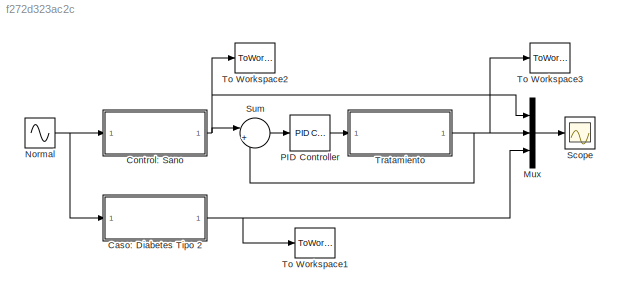
MODEL slx_f272d323ac2c
KIND model
CONFIG AbsTol = auto
CONFIG EnableMultiTasking = off
CONFIG FixedStep = auto
CONFIG MaxStep = 1e-3
CONFIG MinStep = auto
CONFIG RelTol = 1e-3
CONFIG SampleTimeConstraint = Unconstrained
CONFIG SolverName = ode15s
CONFIG StartTime = 0.0
CONFIG StopTime = 10.0
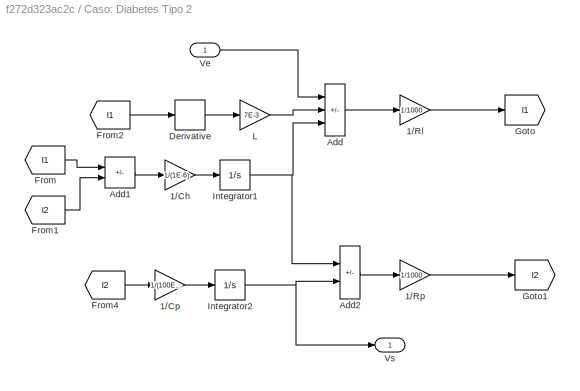
BLOCK [SubSystem] Caso: Diabetes Tipo 2
BLOCK [Gain] Caso: Diabetes Tipo 2/1//Ch
  Gain = 1/(1E-6)
BLOCK [Gain] Caso: Diabetes Tipo 2/1//Cp
  Gain = 1/(100E-6)
BLOCK [Gain] Caso: Diabetes Tipo 2/1//Rl
  Gain = 1/1000
BLOCK [Gain] Caso: Diabetes Tipo 2/1//Rp
  Gain = 1/1000
BLOCK [Sum] Caso: Diabetes Tipo 2/Add
  IconShape = rectangular
  Inputs = +--
BLOCK [Sum] Caso: Diabetes Tipo 2/Add1
  IconShape = rectangular
  Inputs = +-
BLOCK [Sum] Caso: Diabetes Tipo 2/Add2
  IconShape = rectangular
  Inputs = +-
BLOCK [Derivative] Caso: Diabetes Tipo 2/Derivative
BLOCK [From] Caso: Diabetes Tipo 2/From
  GotoTag = I1
BLOCK [From] Caso: Diabetes Tipo 2/From1
  GotoTag = I2
BLOCK [From] Caso: Diabetes Tipo 2/From2
  GotoTag = I1
BLOCK [From] Caso: Diabetes Tipo 2/From4
  GotoTag = I2
BLOCK [Goto] Caso: Diabetes Tipo 2/Goto
  GotoTag = I1
BLOCK [Goto] Caso: Diabetes Tipo 2/Goto1
  GotoTag = I2
BLOCK [Integrator] Caso: Diabetes Tipo 2/Integrator1
BLOCK [Integrator] Caso: Diabetes Tipo 2/Integrator2
BLOCK [Gain] Caso: Diabetes Tipo 2/L
  Gain = 7E-3
BLOCK [Inport] Caso: Diabetes Tipo 2/Ve
BLOCK [Outport] Caso: Diabetes Tipo 2/Vs
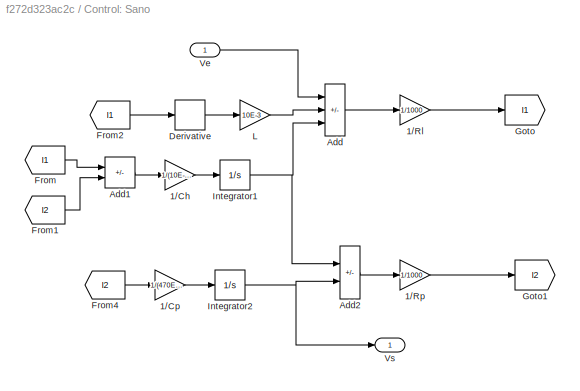
BLOCK [SubSystem] Control: Sano
BLOCK [Gain] Control: Sano/1//Ch
  Gain = 1/(10E-6)
BLOCK [Gain] Control: Sano/1//Cp
  Gain = 1/(470E-6)
BLOCK [Gain] Control: Sano/1//Rl
  Gain = 1/1000
BLOCK [Gain] Control: Sano/1//Rp
  Gain = 1/1000
BLOCK [Sum] Control: Sano/Add
  IconShape = rectangular
  Inputs = +--
BLOCK [Sum] Control: Sano/Add1
  IconShape = rectangular
  Inputs = +-
BLOCK [Sum] Control: Sano/Add2
  IconShape = rectangular
  Inputs = +-
BLOCK [Derivative] Control: Sano/Derivative
BLOCK [From] Control: Sano/From
  GotoTag = I1
BLOCK [From] Control: Sano/From1
  GotoTag = I2
BLOCK [From] Control: Sano/From2
  GotoTag = I1
BLOCK [From] Control: Sano/From4
  GotoTag = I2
BLOCK [Goto] Control: Sano/Goto
  GotoTag = I1
BLOCK [Goto] Control: Sano/Goto1
  GotoTag = I2
BLOCK [Integrator] Control: Sano/Integrator1
BLOCK [Integrator] Control: Sano/Integrator2
BLOCK [Gain] Control: Sano/L
  Gain = 10E-3
BLOCK [Inport] Control: Sano/Ve
BLOCK [Outport] Control: Sano/Vs
BLOCK [Mux] Mux
  DisplayOption = bar
  Inputs = 3
BLOCK [Sin] Normal
  Amplitude = 2
  Frequency = 1.5708
  SampleTime = 0.001
BLOCK [Reference] PID Controller  REF=slpidlib/PID Controller
  LibrarySourceBlock = simulink/Continuous/PID Controller
  SourceBlock = slpidlib/PID Controller
  SourceType = PID 1dof
BLOCK [Scope] Scope
  Floating = off
  NumInputPorts = 1
  ScopeSpecificationString = Simulink.scopes.TimeScopeBlockCfg('CurrentConfiguration', extmgr.ConfigurationSet(extmgr.Configuration('Core','General UI',true),extmgr.Configuration('Core','Source UI',true),extmgr.Configuration('Sources','WiredSimulink',true),extmgr.Configuration('Visuals','Time Domain',true,'SerializedDisplays',{struct('MinYLimReal','-2.38454','MaxYLimReal','2.38604','YLabelReal','','MinYLimMag','0.00000','MaxY...<+1437ch>
BLOCK [Sum] Sum
  Inputs = |+-
BLOCK [ToWorkspace] To Workspace1
  FixptAsFi = on
  MaxDataPoints = inf
  SampleTime = -1
  VariableName = Ppx
BLOCK [ToWorkspace] To Workspace2
  FixptAsFi = on
  MaxDataPoints = inf
  SampleTime = -1
  VariableName = Ppy
BLOCK [ToWorkspace] To Workspace3
  FixptAsFi = on
  MaxDataPoints = inf
  SampleTime = -1
  VariableName = Ppz
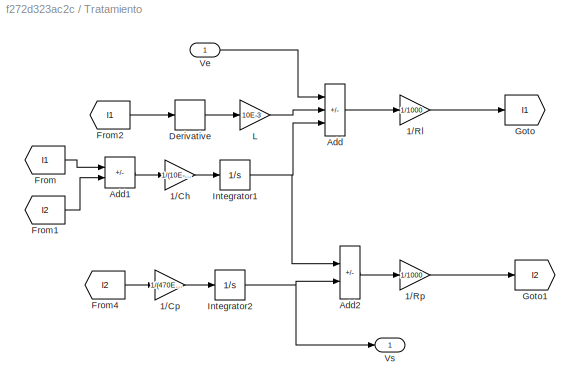
BLOCK [SubSystem] Tratamiento
BLOCK [Gain] Tratamiento/1//Ch
  Gain = 1/(10E-6)
BLOCK [Gain] Tratamiento/1//Cp
  Gain = 1/(470E-6)
BLOCK [Gain] Tratamiento/1//Rl
  Gain = 1/1000
BLOCK [Gain] Tratamiento/1//Rp
  Gain = 1/1000
BLOCK [Sum] Tratamiento/Add
  IconShape = rectangular
  Inputs = +--
BLOCK [Sum] Tratamiento/Add1
  IconShape = rectangular
  Inputs = +-
BLOCK [Sum] Tratamiento/Add2
  IconShape = rectangular
  Inputs = +-
BLOCK [Derivative] Tratamiento/Derivative
BLOCK [From] Tratamiento/From
  GotoTag = I1
BLOCK [From] Tratamiento/From1
  GotoTag = I2
BLOCK [From] Tratamiento/From2
  GotoTag = I1
BLOCK [From] Tratamiento/From4
  GotoTag = I2
BLOCK [Goto] Tratamiento/Goto
  GotoTag = I1
BLOCK [Goto] Tratamiento/Goto1
  GotoTag = I2
BLOCK [Integrator] Tratamiento/Integrator1
BLOCK [Integrator] Tratamiento/Integrator2
BLOCK [Gain] Tratamiento/L
  Gain = 10E-3
BLOCK [Inport] Tratamiento/Ve
BLOCK [Outport] Tratamiento/Vs
LINE Caso: Diabetes Tipo 2/1//Ch:1 -> Caso: Diabetes Tipo 2/Integrator1:1
LINE Caso: Diabetes Tipo 2/1//Cp:1 -> Caso: Diabetes Tipo 2/Integrator2:1
LINE Caso: Diabetes Tipo 2/1//Rl:1 -> Caso: Diabetes Tipo 2/Goto:1
LINE Caso: Diabetes Tipo 2/1//Rp:1 -> Caso: Diabetes Tipo 2/Goto1:1
LINE Caso: Diabetes Tipo 2/Add1:1 -> Caso: Diabetes Tipo 2/1//Ch:1
LINE Caso: Diabetes Tipo 2/Add2:1 -> Caso: Diabetes Tipo 2/1//Rp:1
LINE Caso: Diabetes Tipo 2/Add:1 -> Caso: Diabetes Tipo 2/1//Rl:1
LINE Caso: Diabetes Tipo 2/Derivative:1 -> Caso: Diabetes Tipo 2/L:1
LINE Caso: Diabetes Tipo 2/From1:1 -> Caso: Diabetes Tipo 2/Add1:2
LINE Caso: Diabetes Tipo 2/From2:1 -> Caso: Diabetes Tipo 2/Derivative:1
LINE Caso: Diabetes Tipo 2/From4:1 -> Caso: Diabetes Tipo 2/1//Cp:1
LINE Caso: Diabetes Tipo 2/From:1 -> Caso: Diabetes Tipo 2/Add1:1
NET Caso: Diabetes Tipo 2/Integrator1:1 -> Caso: Diabetes Tipo 2/Add2:1, Caso: Diabetes Tipo 2/Add:3
NET Caso: Diabetes Tipo 2/Integrator2:1 -> Caso: Diabetes Tipo 2/Add2:2, Caso: Diabetes Tipo 2/Vs:1
LINE Caso: Diabetes Tipo 2/L:1 -> Caso: Diabetes Tipo 2/Add:2
LINE Caso: Diabetes Tipo 2/Ve:1 -> Caso: Diabetes Tipo 2/Add:1
NET Caso: Diabetes Tipo 2:1 -> Mux:3, To Workspace1:1
LINE Control: Sano/1//Ch:1 -> Control: Sano/Integrator1:1
LINE Control: Sano/1//Cp:1 -> Control: Sano/Integrator2:1
LINE Control: Sano/1//Rl:1 -> Control: Sano/Goto:1
LINE Control: Sano/1//Rp:1 -> Control: Sano/Goto1:1
LINE Control: Sano/Add1:1 -> Control: Sano/1//Ch:1
LINE Control: Sano/Add2:1 -> Control: Sano/1//Rp:1
LINE Control: Sano/Add:1 -> Control: Sano/1//Rl:1
LINE Control: Sano/Derivative:1 -> Control: Sano/L:1
LINE Control: Sano/From1:1 -> Control: Sano/Add1:2
LINE Control: Sano/From2:1 -> Control: Sano/Derivative:1
LINE Control: Sano/From4:1 -> Control: Sano/1//Cp:1
LINE Control: Sano/From:1 -> Control: Sano/Add1:1
NET Control: Sano/Integrator1:1 -> Control: Sano/Add2:1, Control: Sano/Add:3
NET Control: Sano/Integrator2:1 -> Control: Sano/Add2:2, Control: Sano/Vs:1
LINE Control: Sano/L:1 -> Control: Sano/Add:2
LINE Control: Sano/Ve:1 -> Control: Sano/Add:1
NET Control: Sano:1 -> Mux:1, Sum:1, To Workspace2:1
LINE Mux:1 -> Scope:1
NET Normal:1 -> Caso: Diabetes Tipo 2:1, Control: Sano:1
LINE PID Controller:1 -> Tratamiento:1
LINE Sum:1 -> PID Controller:1
LINE Tratamiento/1//Ch:1 -> Tratamiento/Integrator1:1
LINE Tratamiento/1//Cp:1 -> Tratamiento/Integrator2:1
LINE Tratamiento/1//Rl:1 -> Tratamiento/Goto:1
LINE Tratamiento/1//Rp:1 -> Tratamiento/Goto1:1
LINE Tratamiento/Add1:1 -> Tratamiento/1//Ch:1
LINE Tratamiento/Add2:1 -> Tratamiento/1//Rp:1
LINE Tratamiento/Add:1 -> Tratamiento/1//Rl:1
LINE Tratamiento/Derivative:1 -> Tratamiento/L:1
LINE Tratamiento/From1:1 -> Tratamiento/Add1:2
LINE Tratamiento/From2:1 -> Tratamiento/Derivative:1
LINE Tratamiento/From4:1 -> Tratamiento/1//Cp:1
LINE Tratamiento/From:1 -> Tratamiento/Add1:1
NET Tratamiento/Integrator1:1 -> Tratamiento/Add2:1, Tratamiento/Add:3
NET Tratamiento/Integrator2:1 -> Tratamiento/Add2:2, Tratamiento/Vs:1
LINE Tratamiento/L:1 -> Tratamiento/Add:2
LINE Tratamiento/Ve:1 -> Tratamiento/Add:1
NET Tratamiento:1 -> Mux:2, Sum:2, To Workspace3:1
note: NET lines group one-source signal fan-out (src -> all destinations, sorted); 1:1 wires keep LINE
